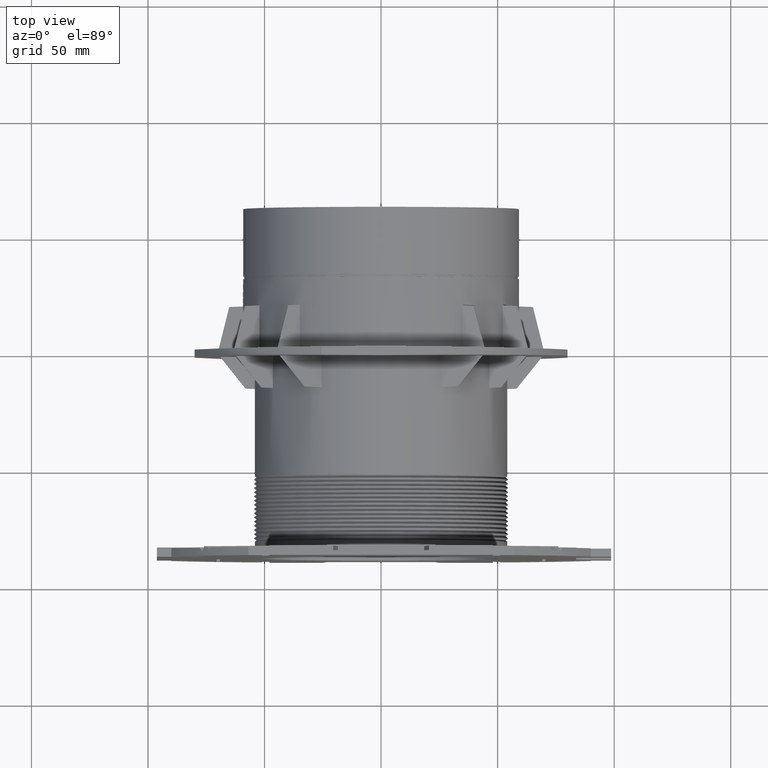
[diagram: clean part render]
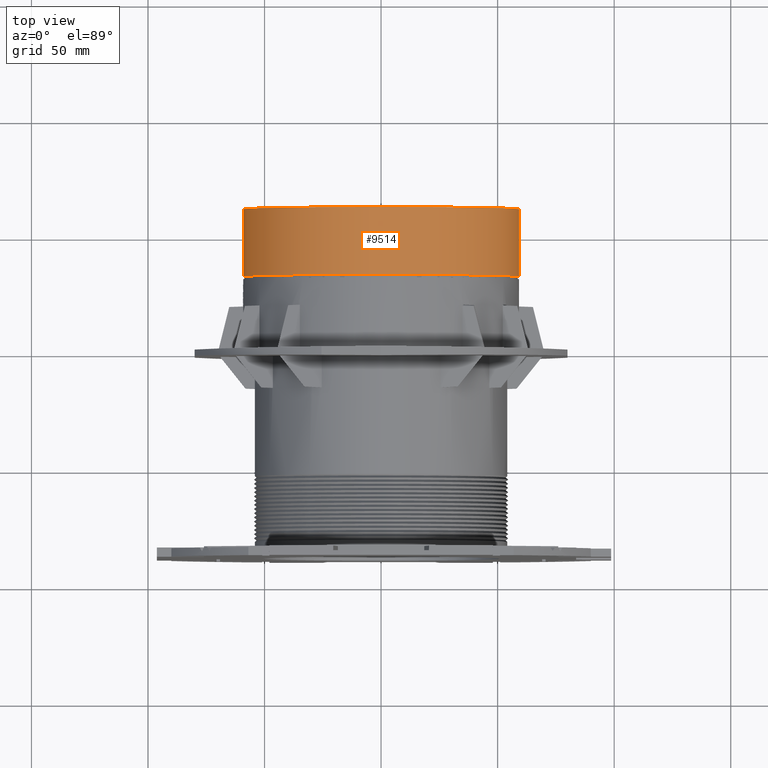
[diagram: same view with one face highlighted and labeled with its STEP entity id]
A machine part, top view. The second image highlights one B-rep face of the part: STEP entity #9514.
In plain terms, the highlighted cylindrical surface (bore or boss wall) has radius 59.15 mm, axis along (0, 1, 0).
Its self-contained STEP definition (entity closure, byte-faithful):
#458=CYLINDRICAL_SURFACE('',#10234,59.15);
#606=CIRCLE('',#10017,59.15);
#642=CIRCLE('',#10232,59.15);
#643=CIRCLE('',#10233,59.15);
#1097=FACE_OUTER_BOUND('',#1607,.T.);
#1607=EDGE_LOOP('',(#8046,#8047,#8048,#8049,#8050));
#2487=LINE('',#18525,#3354);
#3354=VECTOR('',#12443,59.15);
#4155=VERTEX_POINT('',#17149);
#4246=VERTEX_POINT('',#18519);
#4247=VERTEX_POINT('',#18520);
#5246=EDGE_CURVE('',#4155,#4155,#606,.T.);
#5546=EDGE_CURVE('',#4246,#4247,#642,.T.);
#5547=EDGE_CURVE('',#4247,#4246,#643,.T.);
#5549=EDGE_CURVE('',#4155,#4246,#2487,.T.);
#8046=ORIENTED_EDGE('',*,*,#5246,.F.);
#8047=ORIENTED_EDGE('',*,*,#5549,.T.);
#8048=ORIENTED_EDGE('',*,*,#5546,.T.);
#8049=ORIENTED_EDGE('',*,*,#5547,.T.);
#8050=ORIENTED_EDGE('',*,*,#5549,.F.);
#9514=ADVANCED_FACE('',(#1097),#458,.T.);
#10017=AXIS2_PLACEMENT_3D('',#17150,#11770,#11771);
#10232=AXIS2_PLACEMENT_3D('',#18521,#12436,#12437);
#10233=AXIS2_PLACEMENT_3D('',#18522,#12438,#12439);
#10234=AXIS2_PLACEMENT_3D('',#18524,#12441,#12442);
#11770=DIRECTION('center_axis',(0.,1.,0.));
#11771=DIRECTION('ref_axis',(-1.,0.,0.));
#12436=DIRECTION('center_axis',(0.,1.,0.));
#12437=DIRECTION('ref_axis',(-1.,0.,0.));
#12438=DIRECTION('center_axis',(0.,1.,0.));
#12439=DIRECTION('ref_axis',(-1.,0.,0.));
#12441=DIRECTION('center_axis',(0.,1.,0.));
#12442=DIRECTION('ref_axis',(-1.,0.,0.));
#12443=DIRECTION('',(0.,-1.,0.));
#17149=CARTESIAN_POINT('',(59.15,61.5,-7.24378581695659E-15));
#17150=CARTESIAN_POINT('Origin',(0.,61.5,0.));
#18519=CARTESIAN_POINT('',(59.15,32.5174603847459,0.));
#18520=CARTESIAN_POINT('',(-59.15,32.5174603847458,7.2437858169566E-15));
#18521=CARTESIAN_POINT('Origin',(0.,32.5174603847459,0.));
#18522=CARTESIAN_POINT('Origin',(0.,32.5174603847459,0.));
#18524=CARTESIAN_POINT('Origin',(0.,0.,0.));
#18525=CARTESIAN_POINT('',(59.15,0.,-7.24378581695659E-15));